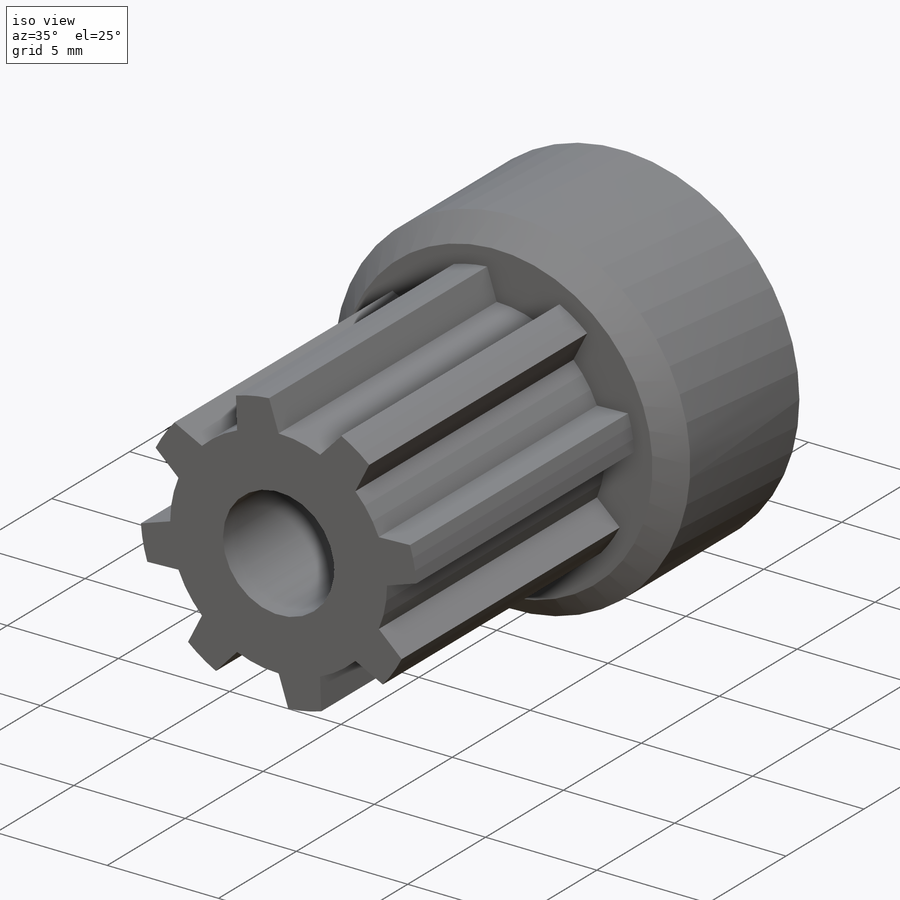
[diagram: iso view]
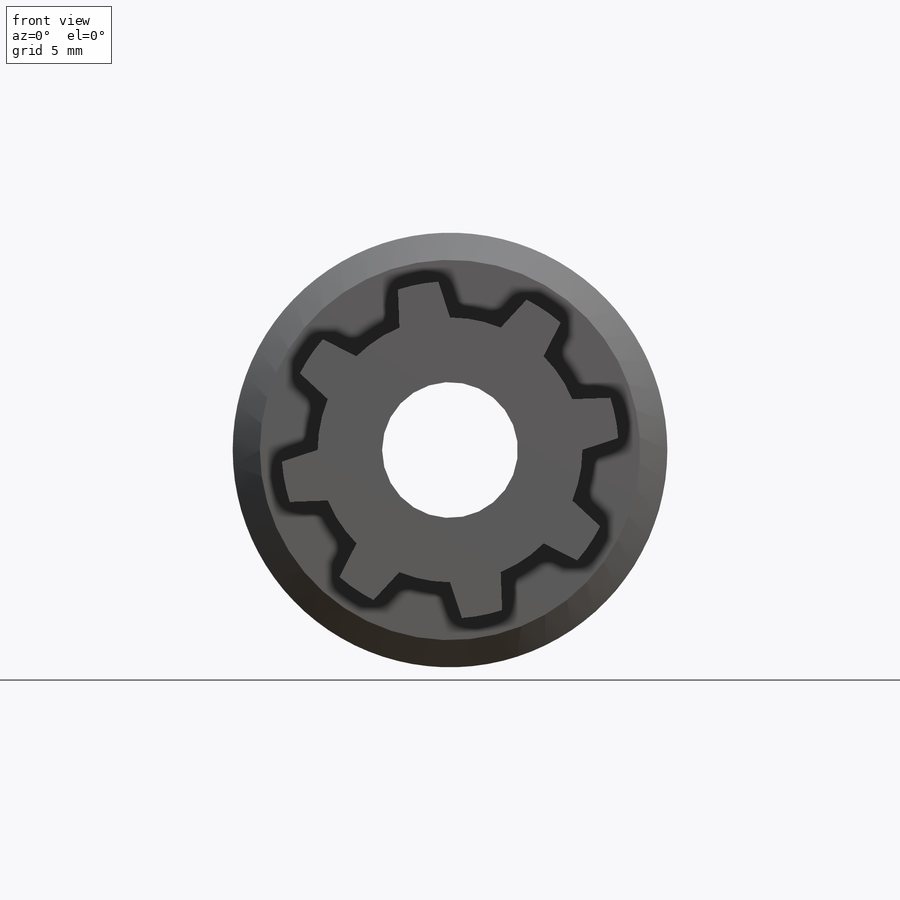
[diagram: front view]
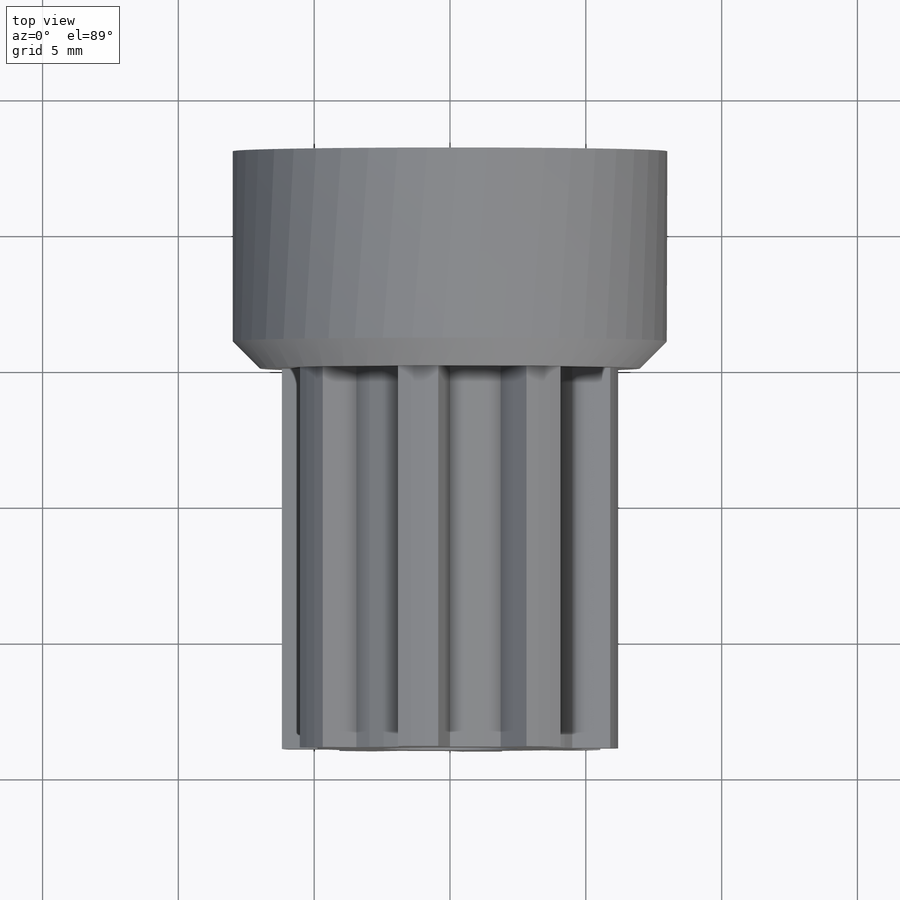
[diagram: top view]
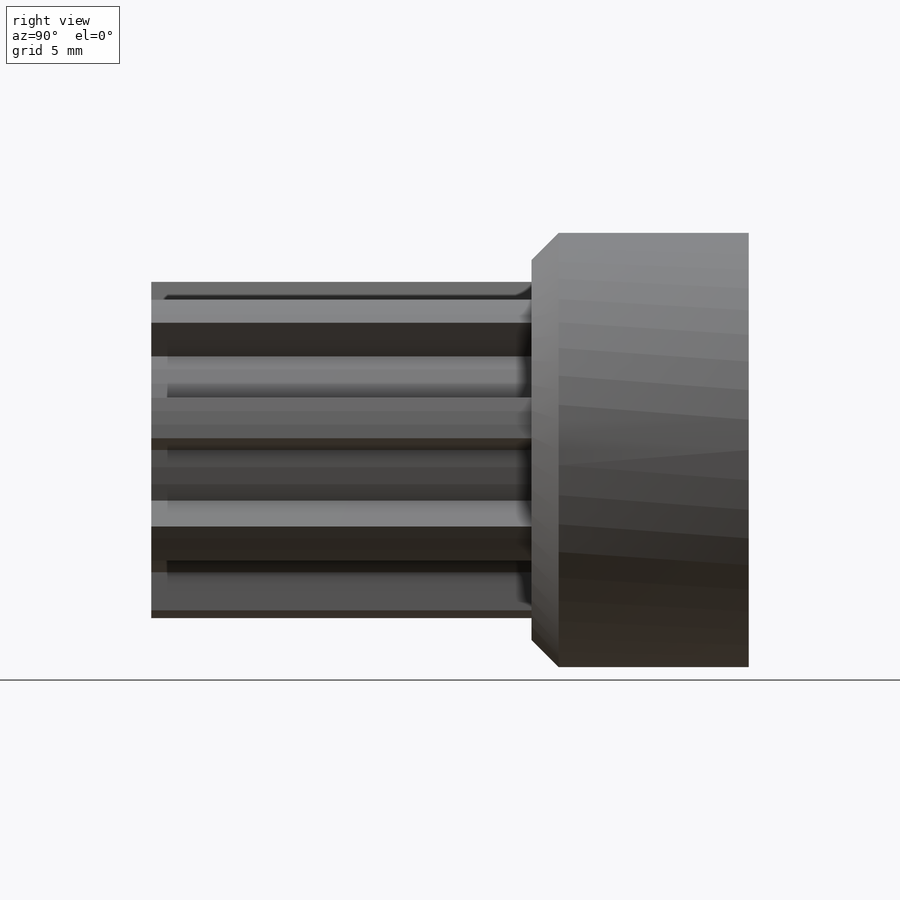
[diagram: right view]
SOLIDWORKS PART (.sldprt)
format: sldprt  version: not decoded by parser v0  size: 294,400 bytes
history: native  units: mm
features: sketch x4, extrude x2, material x1, cut_extrude x1, chamfer x1 (+16 scaffold rows collapsed)
feature tree (25):
  scaffold x16  (default folders/planes/origin — collapsed)
  material  "Green ABS"
  sketch  "Sketch2"  dims[D1=~8.54483mm]
  extrude  "Boss-Extrude1"  Depth=14mm
  sketch  "Sketch3"  dims[D1=~8.136169mm]
  extrude  "Boss-Extrude2"  Depth=8mm
  sketch  "Sketch4"  dims[D1=~2.547616mm]
  cut_extrude  "Cut-Extrude1"  [1 undecoded]
  sketch  "Sketch5"  dims[D1=7.0mm D2=0.8mm D3=3.0mm D4=2.5mm]
  chamfer  "Chamfer1"  Distance=1mm Angle=45deg
decode coverage: 7 of 8 modeling features carry decoded parameters
note: ~ marks probable driven/reference dimensions
note: 1 parameter value undecoded
note: suppression state not decoded; provenance and decode notes live in map.json
